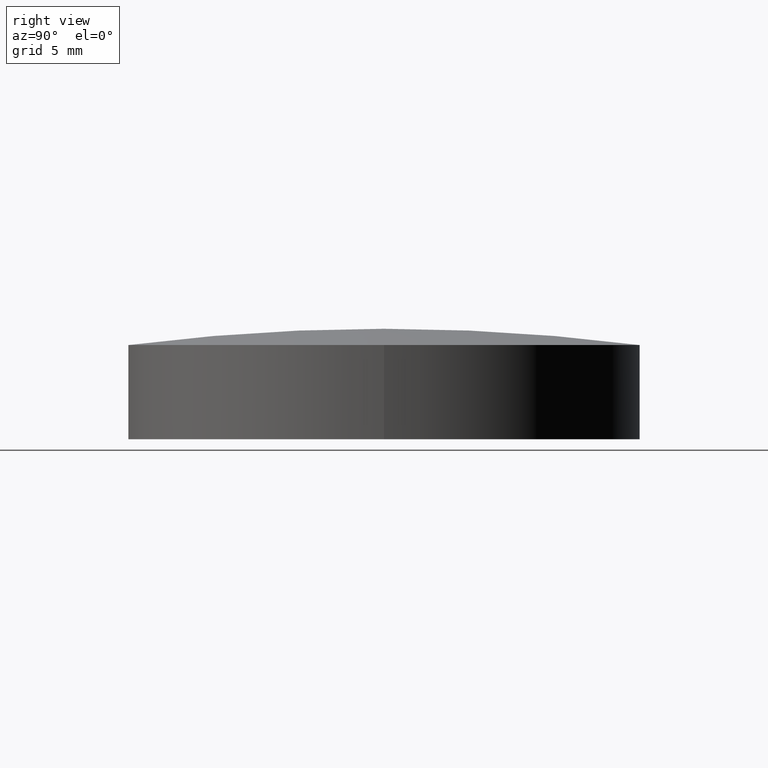
[diagram: clean part render]
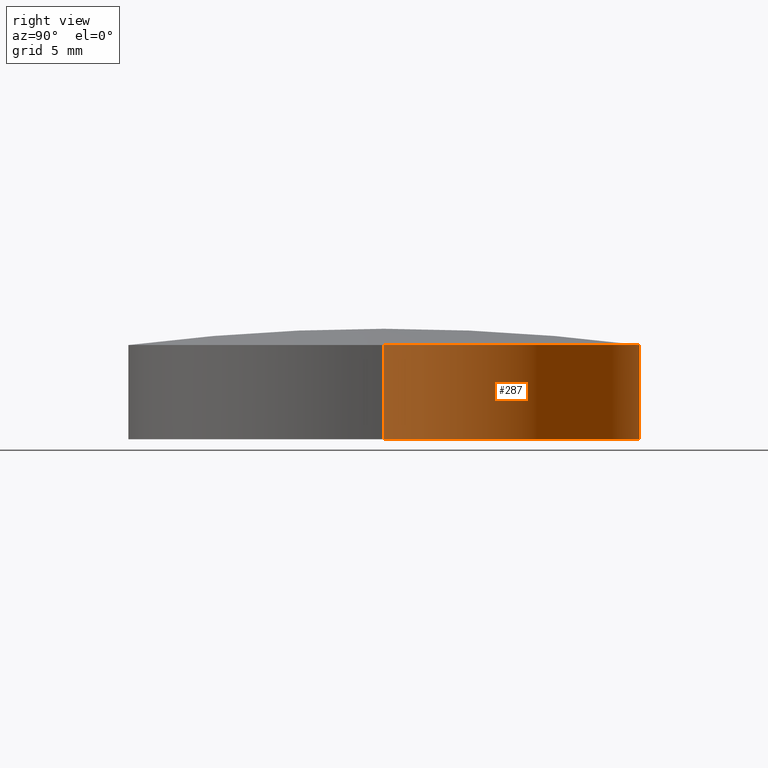
[diagram: same view with one face highlighted and labeled with its STEP entity id]
A machine part, right view. The second image highlights one B-rep face of the part: STEP entity #287.
In plain terms, the highlighted cylindrical surface (partial cylindrical patch) has radius 12.7 mm, axis along (-0, -0, 1).
Its self-contained STEP definition (entity closure, byte-faithful):
#11 = DIRECTION ( 'NONE',  ( 1.000000000000000000, 0.0000000000000000000, 0.0000000000000000000 ) ) ;
#13 = LINE ( 'NONE', #14, #16 ) ;
#14 = CARTESIAN_POINT ( 'NONE',  ( 12.70000000000000100, 0.0000000000000000000, 10.14940656248153400 ) ) ;
#15 = DIRECTION ( 'NONE',  ( -0.0000000000000000000, -0.0000000000000000000, 1.000000000000000000 ) ) ;
#16 = VECTOR ( 'NONE', #15, 1000.000000000000000 ) ;
#19 = AXIS2_PLACEMENT_3D ( 'NONE', #21, #22, #11 ) ;
#20 = CIRCLE ( 'NONE', #19, 12.70000000000000100 ) ;
#21 = CARTESIAN_POINT ( 'NONE',  ( 0.0000000000000000000, 0.0000000000000000000, 1.934574508044651300 ) ) ;
#22 = DIRECTION ( 'NONE',  ( -0.0000000000000000000, -0.0000000000000000000, 1.000000000000000000 ) ) ;
#26 = CARTESIAN_POINT ( 'NONE',  ( 0.0000000000000000000, 12.69999999999999200, 1.934574508044653700 ) ) ;
#61 = CARTESIAN_POINT ( 'NONE',  ( 12.70000000000000100, 0.0000000000000000000, 1.934574508044651300 ) ) ;
#75 = DIRECTION ( 'NONE',  ( 1.000000000000000000, 0.0000000000000000000, 0.0000000000000000000 ) ) ;
#76 = DIRECTION ( 'NONE',  ( -0.0000000000000000000, -0.0000000000000000000, 1.000000000000000000 ) ) ;
#77 = CARTESIAN_POINT ( 'NONE',  ( 0.0000000000000000000, 0.0000000000000000000, 1.934574508044651300 ) ) ;
#78 = AXIS2_PLACEMENT_3D ( 'NONE', #77, #76, #75 ) ;
#79 = CIRCLE ( 'NONE', #78, 12.70000000000000100 ) ;
#80 = CYLINDRICAL_SURFACE ( 'NONE', #90, 12.70000000000000100 ) ;
#87 = DIRECTION ( 'NONE',  ( 1.000000000000000000, 0.0000000000000000000, 0.0000000000000000000 ) ) ;
#88 = DIRECTION ( 'NONE',  ( -0.0000000000000000000, -0.0000000000000000000, 1.000000000000000000 ) ) ;
#89 = CARTESIAN_POINT ( 'NONE',  ( 0.0000000000000000000, 0.0000000000000000000, 10.14940656248153400 ) ) ;
#90 = AXIS2_PLACEMENT_3D ( 'NONE', #89, #88, #87 ) ;
#93 = CIRCLE ( 'NONE', #137, 12.70000000000000100 ) ;
#94 = DIRECTION ( 'NONE',  ( 1.000000000000000000, 0.0000000000000000000, 0.0000000000000000000 ) ) ;
#95 = DIRECTION ( 'NONE',  ( -0.0000000000000000000, -0.0000000000000000000, 1.000000000000000000 ) ) ;
#96 = CARTESIAN_POINT ( 'NONE',  ( 0.0000000000000000000, 0.0000000000000000000, -2.744302807640479200 ) ) ;
#97 = AXIS2_PLACEMENT_3D ( 'NONE', #96, #95, #94 ) ;
#98 = CIRCLE ( 'NONE', #97, 12.70000000000000100 ) ;
#107 = CARTESIAN_POINT ( 'NONE',  ( 0.0000000000000000000, 12.69999999999999900, -2.744302807640481000 ) ) ;
#124 = CARTESIAN_POINT ( 'NONE',  ( 12.70000000000000100, 0.0000000000000000000, -2.744302807640479200 ) ) ;
#132 = CARTESIAN_POINT ( 'NONE',  ( -12.70000000000000100, 1.555250069354419300E-015, 1.934574508044651300 ) ) ;
#133 = CARTESIAN_POINT ( 'NONE',  ( -12.70000000000000100, 1.555250069354419300E-015, -2.744302807640479200 ) ) ;
#134 = DIRECTION ( 'NONE',  ( 1.000000000000000000, 0.0000000000000000000, 0.0000000000000000000 ) ) ;
#135 = DIRECTION ( 'NONE',  ( -0.0000000000000000000, -0.0000000000000000000, 1.000000000000000000 ) ) ;
#136 = CARTESIAN_POINT ( 'NONE',  ( 0.0000000000000000000, 0.0000000000000000000, -2.744302807640479200 ) ) ;
#137 = AXIS2_PLACEMENT_3D ( 'NONE', #136, #135, #134 ) ;
#146 = FACE_OUTER_BOUND ( 'NONE', #288, .T. ) ;
#147 = DIRECTION ( 'NONE',  ( -0.0000000000000000000, -0.0000000000000000000, 1.000000000000000000 ) ) ;
#148 = VECTOR ( 'NONE', #147, 1000.000000000000000 ) ;
#162 = CARTESIAN_POINT ( 'NONE',  ( -12.70000000000000100, 1.555250069354419300E-015, 10.14940656248153400 ) ) ;
#163 = LINE ( 'NONE', #162, #148 ) ;
#231 = EDGE_CURVE ( 'NONE', #237, #322, #20, .T. ) ;
#233 = ORIENTED_EDGE ( 'NONE', *, *, #234, .F. ) ;
#234 = EDGE_CURVE ( 'NONE', #277, #262, #13, .T. ) ;
#235 = ORIENTED_EDGE ( 'NONE', *, *, #270, .F. ) ;
#237 = VERTEX_POINT ( 'NONE', #26 ) ;
#259 = ORIENTED_EDGE ( 'NONE', *, *, #286, .T. ) ;
#262 = VERTEX_POINT ( 'NONE', #61 ) ;
#270 = EDGE_CURVE ( 'NONE', #262, #237, #79, .T. ) ;
#277 = VERTEX_POINT ( 'NONE', #124 ) ;
#283 = VERTEX_POINT ( 'NONE', #107 ) ;
#286 = EDGE_CURVE ( 'NONE', #291, #322, #163, .T. ) ;
#287 = ADVANCED_FACE ( 'NONE', ( #146 ), #80, .T. ) ;
#288 = EDGE_LOOP ( 'NONE', ( #292, #293, #259, #294, #235, #233 ) ) ;
#289 = EDGE_CURVE ( 'NONE', #277, #283, #98, .T. ) ;
#290 = EDGE_CURVE ( 'NONE', #283, #291, #93, .T. ) ;
#291 = VERTEX_POINT ( 'NONE', #133 ) ;
#292 = ORIENTED_EDGE ( 'NONE', *, *, #289, .T. ) ;
#293 = ORIENTED_EDGE ( 'NONE', *, *, #290, .T. ) ;
#294 = ORIENTED_EDGE ( 'NONE', *, *, #231, .F. ) ;
#322 = VERTEX_POINT ( 'NONE', #132 ) ;